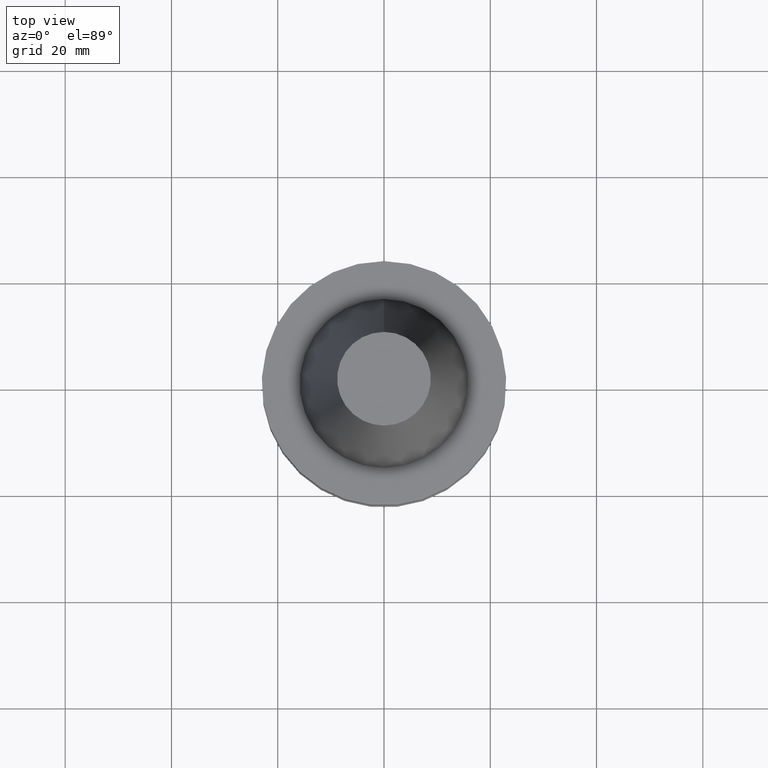
[diagram: clean part render]
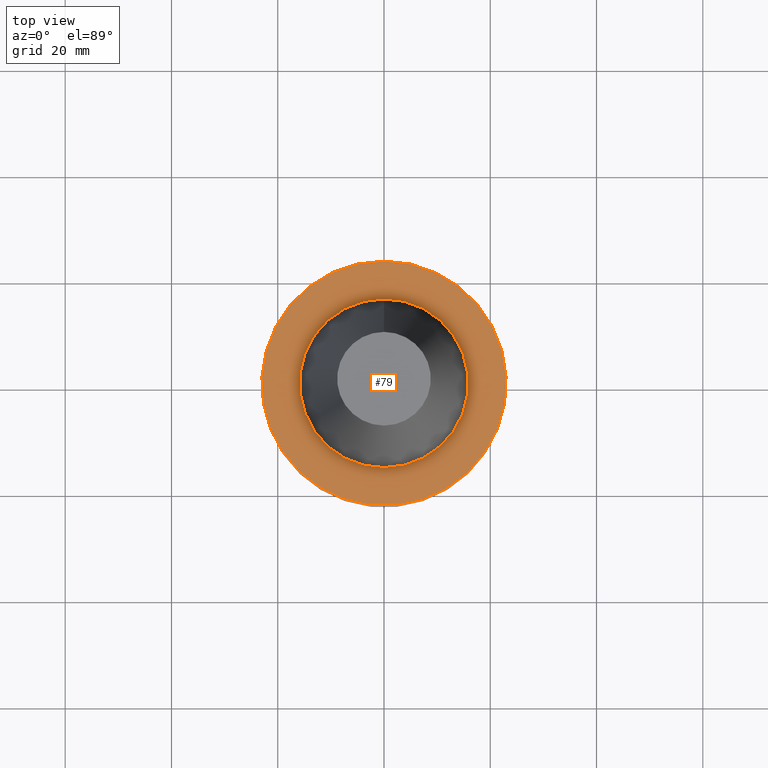
[diagram: same view with one face highlighted and labeled with its STEP entity id]
A machine part, top view. The second image highlights one B-rep face of the part: STEP entity #79.
In plain terms, the highlighted planar face has unit normal (-0, -0, 1).
Its self-contained STEP definition (entity closure, byte-faithful):
#79=ADVANCED_FACE('',(#99,#100),#101,.T.);
#99=FACE_OUTER_BOUND('',#136,.T.);
#100=FACE_BOUND('',#137,.T.);
#101=PLANE('',#138);
#136=EDGE_LOOP('',(#181));
#137=EDGE_LOOP('',(#182));
#138=AXIS2_PLACEMENT_3D('',#183,#184,#185);
#181=ORIENTED_EDGE('',*,*,#230,.F.);
#182=ORIENTED_EDGE('',*,*,#229,.T.);
#183=CARTESIAN_POINT('',(6.12323399573674E-017,19.4375000000006,-0.999999999999998));
#184=DIRECTION('',(-6.12323399573677E-017,-1.22464679914735E-016,1.0));
#185=DIRECTION('',(1.23259516440783E-032,-1.0,-1.22464679914735E-016));
#229=EDGE_CURVE('',#244,#244,#245,.T.);
#230=EDGE_CURVE('',#246,#246,#247,.T.);
#244=VERTEX_POINT('',#268);
#245=CIRCLE('',#269,15.8750000000011);
#246=VERTEX_POINT('',#270);
#247=CIRCLE('',#271,23.0);
#268=CARTESIAN_POINT('',(6.12323399573675E-017,15.8750000000011,-0.999999999999998));
#269=AXIS2_PLACEMENT_3D('',#295,#296,#297);
#270=CARTESIAN_POINT('',(6.12323399573674E-017,23.0,-0.999999999999997));
#271=AXIS2_PLACEMENT_3D('',#298,#299,#300);
#295=CARTESIAN_POINT('',(6.12323399573677E-017,1.22464679914735E-016,-1.0));
#296=DIRECTION('',(6.12323399573677E-017,1.22464679914735E-016,-1.0));
#297=DIRECTION('',(-1.23259516440783E-032,1.0,1.22464679914735E-016));
#298=CARTESIAN_POINT('',(6.12323399573677E-017,1.22464679914735E-016,-1.0));
#299=DIRECTION('',(6.12323399573677E-017,1.22464679914735E-016,-1.0));
#300=DIRECTION('',(-1.23259516440783E-032,1.0,1.22464679914735E-016));